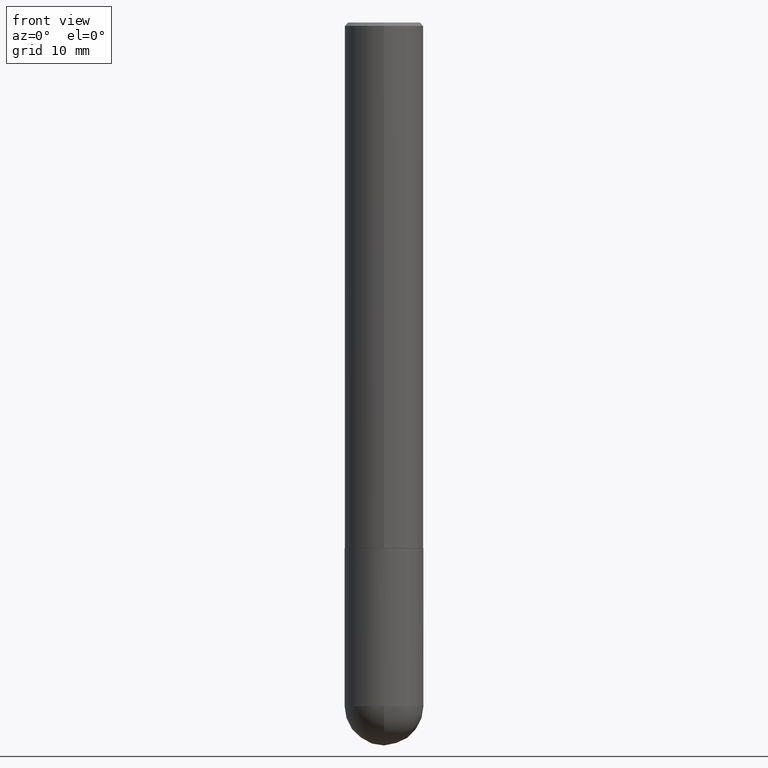
[diagram: clean part render]
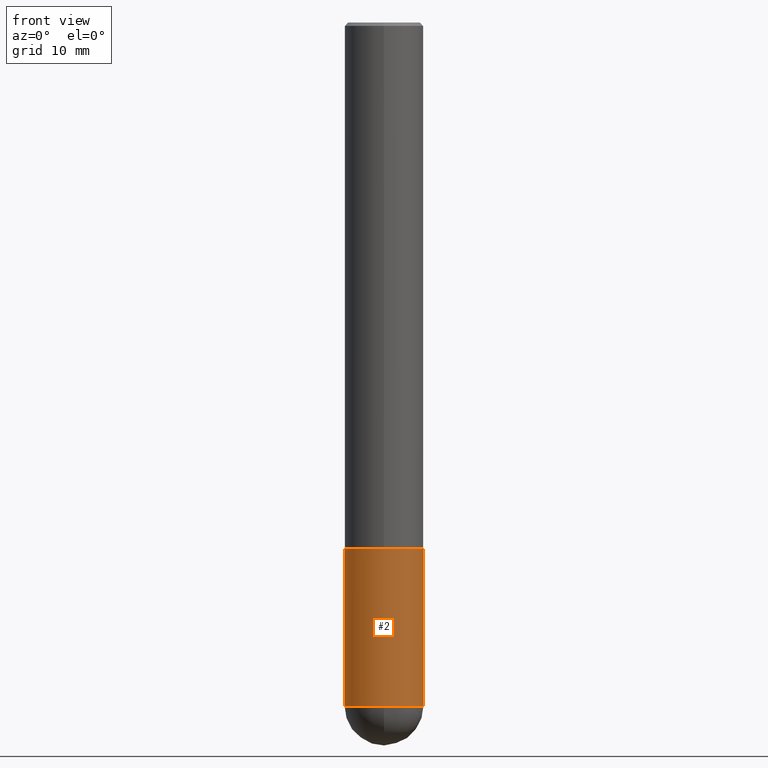
[diagram: same view with one face highlighted and labeled with its STEP entity id]
A machine part, front view. The second image highlights one B-rep face of the part: STEP entity #2.
In plain terms, the highlighted cylindrical surface (partial cylindrical patch) has radius 5.9995 mm, axis along (-0, 0, 1).
Its self-contained STEP definition (entity closure, byte-faithful):
#2 = ADVANCED_FACE ( 'NONE', ( #16 ), #211, .T. ) ;
#4 = DIRECTION ( 'NONE',  ( 1.000000000000000000, -6.982962677686265133E-15, 0.000000000000000000 ) ) ;
#16 = FACE_OUTER_BOUND ( 'NONE', #142, .T. ) ;
#19 = CIRCLE ( 'NONE', #255, 0.2361999999999999933 ) ;
#41 = CARTESIAN_POINT ( 'NONE',  ( -0.2361999999999999933, -1.096801804149146130E-14, -3.149600000000000399 ) ) ;
#42 = VECTOR ( 'NONE', #199, 39.37007874015748143 ) ;
#44 = CARTESIAN_POINT ( 'NONE',  ( 7.702248551960706711E-29, -1.099676962482037231E-14, -3.149600000000000399 ) ) ;
#53 = EDGE_CURVE ( 'NONE', #125, #263, #290, .T. ) ;
#65 = DIRECTION ( 'NONE',  ( -2.445468806185136597E-29, 3.491481338843145583E-15, 1.000000000000000000 ) ) ;
#70 = ORIENTED_EDGE ( 'NONE', *, *, #200, .F. ) ;
#72 = DIRECTION ( 'NONE',  ( 1.000000000000000000, -6.982962677686266711E-15, 4.876176775795936353E-29 ) ) ;
#99 = EDGE_CURVE ( 'NONE', #112, #215, #182, .T. ) ;
#101 = CARTESIAN_POINT ( 'NONE',  ( 1.001297202692504215E-28, -1.429587034189326149E-14, -4.094500000000000028 ) ) ;
#112 = VERTEX_POINT ( 'NONE', #166 ) ;
#117 = CARTESIAN_POINT ( 'NONE',  ( 0.000000000000000000, 0.000000000000000000, 0.000000000000000000 ) ) ;
#125 = VERTEX_POINT ( 'NONE', #316 ) ;
#131 = DIRECTION ( 'NONE',  ( -2.445468806185136597E-29, 3.491481338843145583E-15, 1.000000000000000000 ) ) ;
#142 = EDGE_LOOP ( 'NONE', ( #70, #344, #324, #313, #362 ) ) ;
#147 = DIRECTION ( 'NONE',  ( 1.000000000000000000, -6.982962677686265133E-15, 0.000000000000000000 ) ) ;
#166 = CARTESIAN_POINT ( 'NONE',  ( -0.2361999999999999933, -1.096801804149146287E-14, -4.094500000000000028 ) ) ;
#177 = DIRECTION ( 'NONE',  ( -2.445468806185136597E-29, 3.491481338843145583E-15, 1.000000000000000000 ) ) ;
#182 = CIRCLE ( 'NONE', #201, 0.2361999999999999933 ) ;
#192 = VECTOR ( 'NONE', #258, 39.37007874015748143 ) ;
#199 = DIRECTION ( 'NONE',  ( -2.445468806185136877E-29, 3.491481338843145188E-15, 1.000000000000000000 ) ) ;
#200 = EDGE_CURVE ( 'NONE', #112, #360, #368, .T. ) ;
#201 = AXIS2_PLACEMENT_3D ( 'NONE', #101, #131, #314 ) ;
#210 = CIRCLE ( 'NONE', #373, 0.2361999999999999933 ) ;
#211 = CYLINDRICAL_SURFACE ( 'NONE', #325, 0.2361999999999999933 ) ;
#215 = VERTEX_POINT ( 'NONE', #374 ) ;
#255 = AXIS2_PLACEMENT_3D ( 'NONE', #44, #177, #147 ) ;
#258 = DIRECTION ( 'NONE',  ( -2.445468806185136877E-29, 3.491481338843145188E-15, 1.000000000000000000 ) ) ;
#263 = VERTEX_POINT ( 'NONE', #349 ) ;
#287 = CARTESIAN_POINT ( 'NONE',  ( -0.2361999999999999933, 1.678301941865356591E-15, -1.161852468318208757E-29 ) ) ;
#290 = LINE ( 'NONE', #401, #42 ) ;
#313 = ORIENTED_EDGE ( 'NONE', *, *, #53, .T. ) ;
#314 = DIRECTION ( 'NONE',  ( 1.000000000000000000, -6.982962677686265133E-15, 0.000000000000000000 ) ) ;
#316 = CARTESIAN_POINT ( 'NONE',  ( 0.2361999999999999933, -1.429569576782631264E-14, -4.094500000000000028 ) ) ;
#319 = EDGE_CURVE ( 'NONE', #215, #125, #210, .T. ) ;
#324 = ORIENTED_EDGE ( 'NONE', *, *, #319, .T. ) ;
#325 = AXIS2_PLACEMENT_3D ( 'NONE', #117, #65, #72 ) ;
#327 = CARTESIAN_POINT ( 'NONE',  ( 1.001297202692504215E-28, -1.429587034189326149E-14, -4.094500000000000028 ) ) ;
#344 = ORIENTED_EDGE ( 'NONE', *, *, #99, .T. ) ;
#349 = CARTESIAN_POINT ( 'NONE',  ( 0.2361999999999999933, -1.264614540928986883E-14, -3.149600000000000399 ) ) ;
#360 = VERTEX_POINT ( 'NONE', #41 ) ;
#362 = ORIENTED_EDGE ( 'NONE', *, *, #375, .F. ) ;
#368 = LINE ( 'NONE', #287, #192 ) ;
#373 = AXIS2_PLACEMENT_3D ( 'NONE', #327, #379, #4 ) ;
#374 = CARTESIAN_POINT ( 'NONE',  ( -1.678301941865258773E-15, -0.2362000000000146760, -4.094499999999999140 ) ) ;
#375 = EDGE_CURVE ( 'NONE', #360, #263, #19, .T. ) ;
#379 = DIRECTION ( 'NONE',  ( -2.445468806185136597E-29, 3.491481338843145583E-15, 1.000000000000000000 ) ) ;
#401 = CARTESIAN_POINT ( 'NONE',  ( 0.2361999999999999933, -1.649375784469496131E-15, 1.151752954443000088E-29 ) ) ;